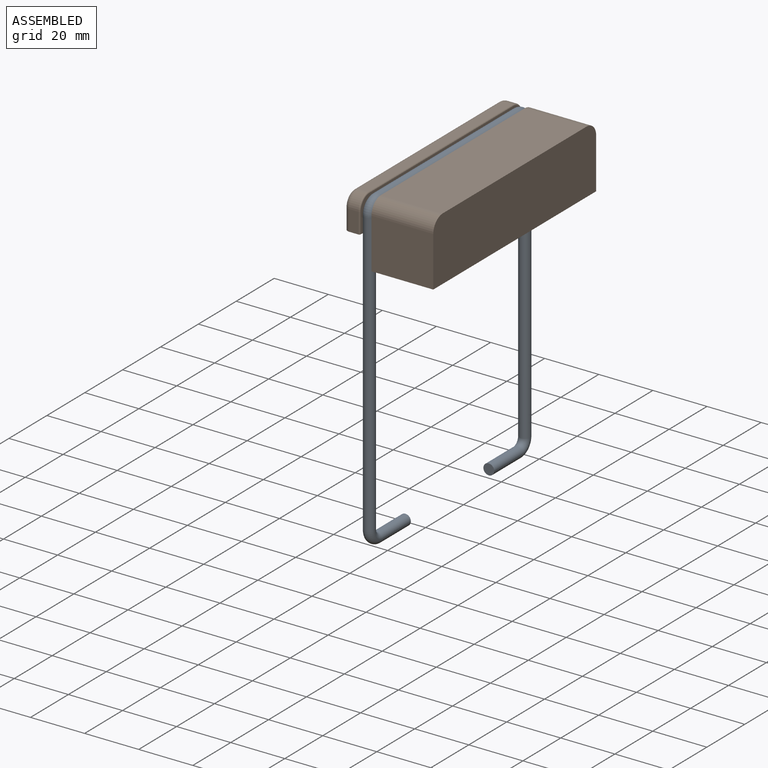
[diagram: assembled view]
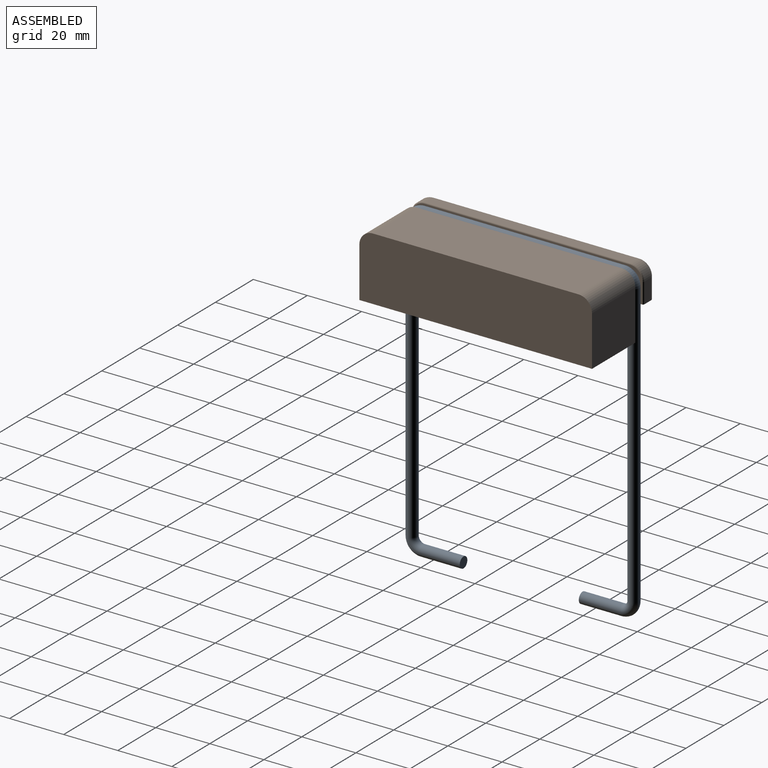
[diagram: assembled view, second angle]
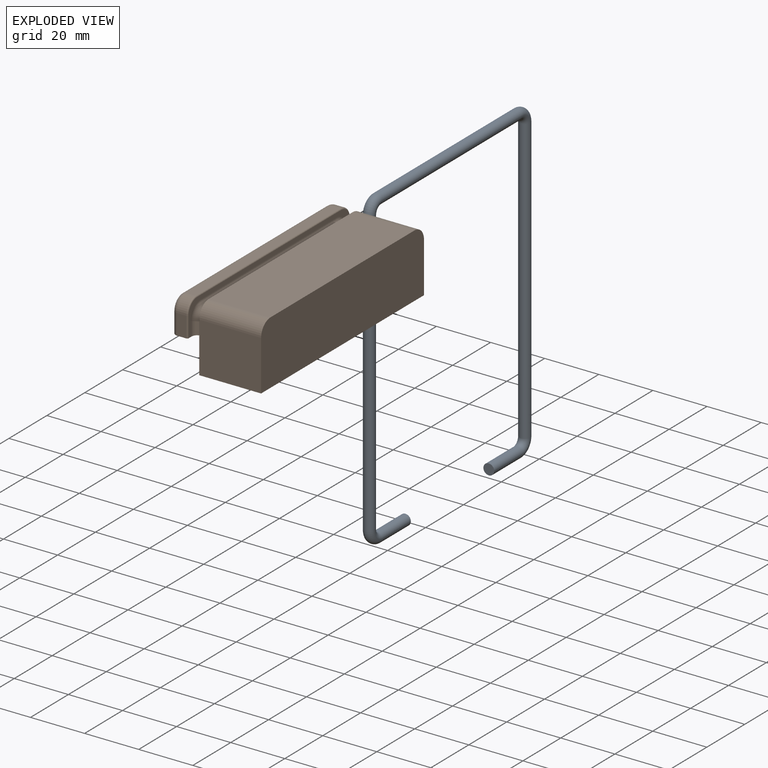
[diagram: exploded view]
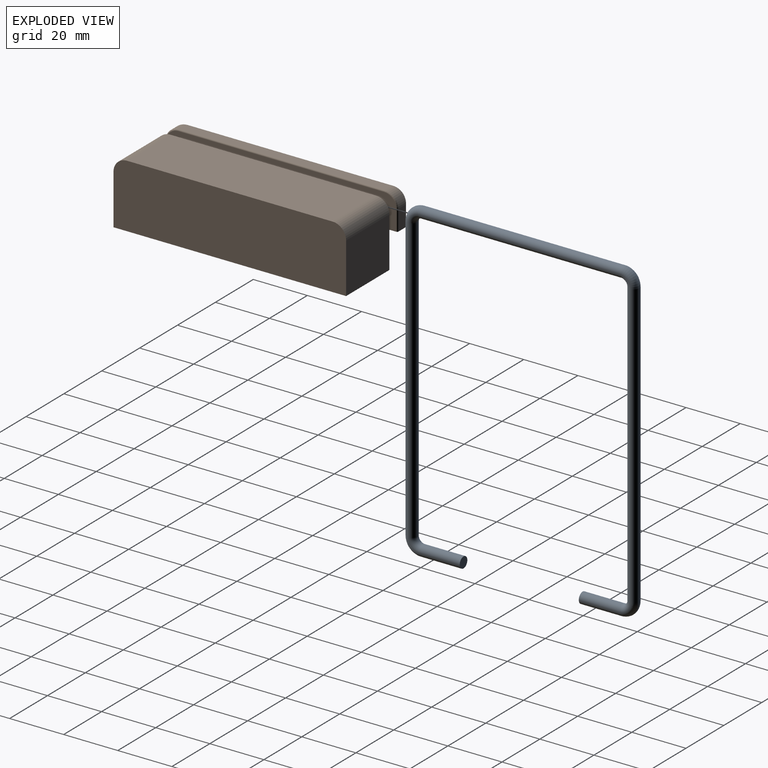
[diagram: exploded view, second angle]
ASSEMBLY  parts=2 mates=2
PART A: 11 faces, bbox 4x87x118 mm
  f0: plane 4x4mm, normal (0,-1,0), area 12.6mm2, adj f2
  f1: plane 4x4mm, normal (0,1,0), area 12.6mm2, adj f10
  f2: cylinder r=2mm len=15mm, axis (0,1,0), area 188.5mm2, adj f0,f3
  f3: torus R=4mm, axis (1,0,0), area 79mm2, adj f2,f4
  f4: cylinder r=2mm len=105mm, axis (0,0,1), area 1319.5mm2, adj f3,f5
  f5: torus R=4mm, axis (1,0,0), area 79mm2, adj f4,f6
  f6: cylinder r=2mm len=74mm, axis (0,-1,0), area 929.9mm2, adj f5,f7
  f7: torus R=4mm, axis (1,0,0), area 79mm2, adj f6,f8
  f8: cylinder r=2mm len=105mm, axis (0,0,-1), area 1319.5mm2, adj f7,f9
  f9: torus R=4mm, axis (1,0,0), area 79mm2, adj f8,f10
  f10: cylinder r=2mm len=15mm, axis (0,1,0), area 188.5mm2, adj f1,f9
PART B: 36 faces, bbox 86.8x33x24 mm
  f0: plane 86x23.55mm, normal (0,1,0), area 361.8mm2, adj f5,f6,f7,f9,f11,f12,f13,f14
  f1: plane 82x10.55mm, normal (0,1,0), area 861.2mm2, adj f15,f26,f27,f28,f29,f30
  f2: plane 85x12.05mm, normal (0,-1,0), area 176.8mm2, adj f6,f7,f12,f13,f14,f15,f31,f32
  f3: plane 86x23.55mm, normal (0,-1,0), area 2014.6mm2, adj f5,f9,f11,f21,f22,f23
  f4: plane 76x3.35mm, normal (0,0,1), area 254.6mm2, adj f24,f25,f28,f33
  f5: plane 86x22.85mm, normal (0,0,-1), area 1558.1mm2, adj f0,f3,f9,f11,f18,f19,f20
  f6: cylinder r=2.15mm len=5.4mm, axis (0,0,1), area 36.5mm2, adj f0,f2,f12,f15
  f7: cylinder r=2.15mm len=5.4mm, axis (0,0,-1), area 36.5mm2, adj f0,f2,f14,f15
  f8: plane 7.55x3.35mm, normal (-1,0,0), area 25.3mm2, adj f15,f24,f30,f35
  f9: plane 22.85x18.55mm, normal (-1,0,0), area 423.9mm2, adj f0,f3,f5,f21
  f10: plane 7.55x3.35mm, normal (1,0,0), area 25.3mm2, adj f15,f25,f26,f31
  f11: plane 22.85x18.55mm, normal (1,0,0), area 423.9mm2, adj f0,f3,f5,f23
  f12: torus R=5mm, axis (0,1,0), area 38.5mm2, adj f0,f2,f6,f13
  f13: cylinder r=2.15mm len=71.68mm, axis (1,0,0), area 484.1mm2, adj f0,f2,f12,f14
  f14: torus R=5mm, axis (0,1,0), area 38.5mm2, adj f0,f2,f7,f13
  f15: plane 86x10.15mm, normal (0,0,-1), area 838mm2, adj f0,f1,f2,f6,f7,f8,f10,f16
  f16: plane 74x3mm, normal (0,-1,0), area 222mm2, adj f15,f17,f19,f20
  f17: plane 74x5.5mm, normal (0,0,-1), area 407mm2, adj f16,f18,f19,f20
  f18: plane 74x14mm, normal (0,1,0), area 1036mm2, adj f5,f17,f19,f20
  f19: plane 14x5.5mm, normal (1,0,0), area 77mm2, adj f0,f5,f16,f17,f18
  f20: plane 14x5.5mm, normal (-1,0,0), area 77mm2, adj f0,f5,f16,f17,f18
  f21: cylinder r=5mm len=22.85mm, axis (0,1,0), area 179.5mm2, adj f0,f3,f9,f22
  f22: plane 76x22.85mm, normal (0,0,1), area 1736.6mm2, adj f0,f3,f21,f23
  f23: cylinder r=5mm len=22.85mm, axis (0,1,0), area 179.5mm2, adj f0,f3,f11,f22
  f24: cylinder r=5mm len=5mm, axis (0,1,0), area 26.3mm2, adj f4,f8,f29,f34
  f25: cylinder r=5mm len=5mm, axis (0,1,0), area 26.3mm2, adj f4,f10,f27,f32
  f26: cylinder r=2mm len=7.55mm, axis (0,0,-1), area 23.7mm2, adj f1,f10,f15,f27
  f27: torus R=3mm, axis (0,1,0), area 21.1mm2, adj f1,f25,f26,f28
  f28: cylinder r=2mm len=76mm, axis (-1,0,0), area 238.8mm2, adj f1,f4,f27,f29
  f29: torus R=3mm, axis (0,1,0), area 21.1mm2, adj f1,f24,f28,f30
  f30: cylinder r=2mm len=7.55mm, axis (0,0,1), area 23.7mm2, adj f1,f8,f15,f29
  f31: cylinder r=0.5mm len=7.55mm, axis (0,0,-1), area 5.9mm2, adj f2,f10,f15,f32
  f32: torus R=4.5mm, axis (0,1,0), area 5.9mm2, adj f2,f25,f31,f33
  f33: cylinder r=0.5mm len=76mm, axis (1,0,0), area 59.7mm2, adj f2,f4,f32,f34
  f34: torus R=4.5mm, axis (0,1,0), area 5.9mm2, adj f2,f24,f33,f35
  f35: cylinder r=0.5mm len=7.55mm, axis (0,0,1), area 5.9mm2, adj f2,f8,f15,f34
PLACE A t=(16.99,15.68,68.76)mm
PLACE B rot(axis=(0,0,1),90deg) t=(16.99,15.68,47.36)mm
MATE slider B.f13 <-> A.f6  axis (0,1,0) through (16.99,15.52,68.76)mm
MATE slider A.f8 <-> B.f6  axis (0,0,-1) through (16.99,-25.32,12.26)mm
